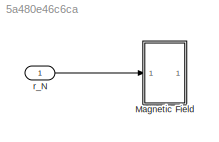
MODEL slx_5a480e46c6ca
KIND model
CONFIG AbsTol = auto
CONFIG EnableMultiTasking = off
CONFIG FixedStep = auto
CONFIG MaxStep = auto
CONFIG MinStep = auto
CONFIG RelTol = 1e-3
CONFIG SampleTimeConstraint = Unconstrained
CONFIG SolverName = VariableStepAuto
CONFIG StartTime = 0.0
CONFIG StopTime = 10.0
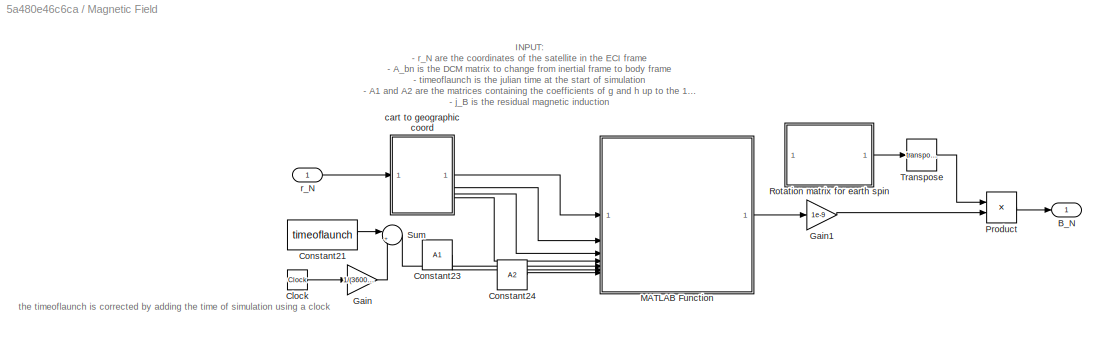
BLOCK [SubSystem] Magnetic Field
BLOCK [Outport] Magnetic Field/B_N
BLOCK [Clock] Magnetic Field/Clock
BLOCK [Constant] Magnetic Field/Constant21
  Value = timeoflaunch
BLOCK [Constant] Magnetic Field/Constant23
  Value = A1
BLOCK [Constant] Magnetic Field/Constant24
  Value = A2
BLOCK [Gain] Magnetic Field/Gain
  Gain = 1/(3600*24)
BLOCK [Gain] Magnetic Field/Gain1
  Gain = 1e-9
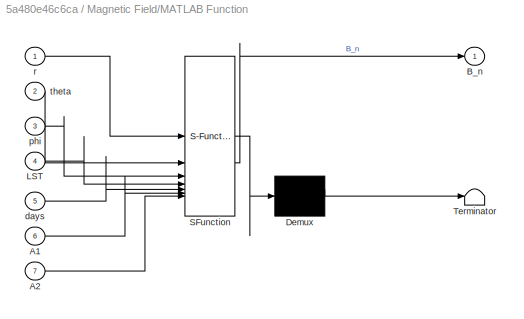
BLOCK [SubSystem] Magnetic Field/MATLAB Function
  ErrorFcn = Stateflow.Translate.translate
  PermitHierarchicalResolution = ExplicitOnly
  SFBlockType = MATLAB Function
  TreatAsAtomicUnit = on
BLOCK [Demux] Magnetic Field/MATLAB Function/ Demux 
  Outputs = 1
BLOCK [S-Function] Magnetic Field/MATLAB Function/ SFunction 
  EnableBusSupport = on
  FunctionName = sf_sfun
  PortCounts = [7 2]
  SFcnIsStateOwnerBlock = off
  SFunctionDeploymentMode = off
  Tag = Stateflow S-Function 1
BLOCK [Terminator] Magnetic Field/MATLAB Function/ Terminator 
BLOCK [Inport] Magnetic Field/MATLAB Function/A1
  Port = 6
BLOCK [Inport] Magnetic Field/MATLAB Function/A2
  Port = 7
BLOCK [Outport] Magnetic Field/MATLAB Function/B_n
BLOCK [Inport] Magnetic Field/MATLAB Function/LST
  Port = 4
BLOCK [Inport] Magnetic Field/MATLAB Function/days
  Port = 5
BLOCK [Inport] Magnetic Field/MATLAB Function/phi
  Port = 3
BLOCK [Inport] Magnetic Field/MATLAB Function/r
BLOCK [Inport] Magnetic Field/MATLAB Function/theta
  Port = 2
BLOCK [Product] Magnetic Field/Product
  Multiplication = Matrix(*)
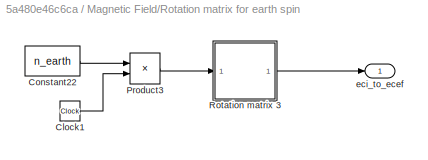
BLOCK [SubSystem] Magnetic Field/Rotation matrix for earth spin
BLOCK [Clock] Magnetic Field/Rotation matrix for earth spin/Clock1
BLOCK [Constant] Magnetic Field/Rotation matrix for earth spin/Constant22
  Value = n_earth
BLOCK [Product] Magnetic Field/Rotation matrix for earth spin/Product3
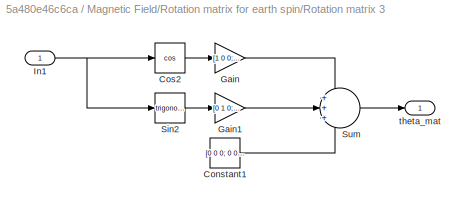
BLOCK [SubSystem] Magnetic Field/Rotation matrix for earth spin/Rotation matrix 3
BLOCK [Constant] Magnetic Field/Rotation matrix for earth spin/Rotation matrix 3/Constant1
  Value = [0 0 0; 0 0 0; 0 0 1]
BLOCK [Trigonometry] Magnetic Field/Rotation matrix for earth spin/Rotation matrix 3/Cos2
  Operator = cos
BLOCK [Gain] Magnetic Field/Rotation matrix for earth spin/Rotation matrix 3/Gain
  Gain = [1 0 0; 0 1 0; 0 0 0]
BLOCK [Gain] Magnetic Field/Rotation matrix for earth spin/Rotation matrix 3/Gain1
  Gain = [0 1 0; -1 0 0; 0 0 0]
BLOCK [Inport] Magnetic Field/Rotation matrix for earth spin/Rotation matrix 3/In1
BLOCK [Trigonometry] Magnetic Field/Rotation matrix for earth spin/Rotation matrix 3/Sin2
BLOCK [Sum] Magnetic Field/Rotation matrix for earth spin/Rotation matrix 3/Sum
  Inputs = +++
BLOCK [Outport] Magnetic Field/Rotation matrix for earth spin/Rotation matrix 3/theta_mat
BLOCK [Outport] Magnetic Field/Rotation matrix for earth spin/eci_to_ecef
BLOCK [Sum] Magnetic Field/Sum
  Inputs = |++
BLOCK [Math] Magnetic Field/Transpose
  Operator = transpose
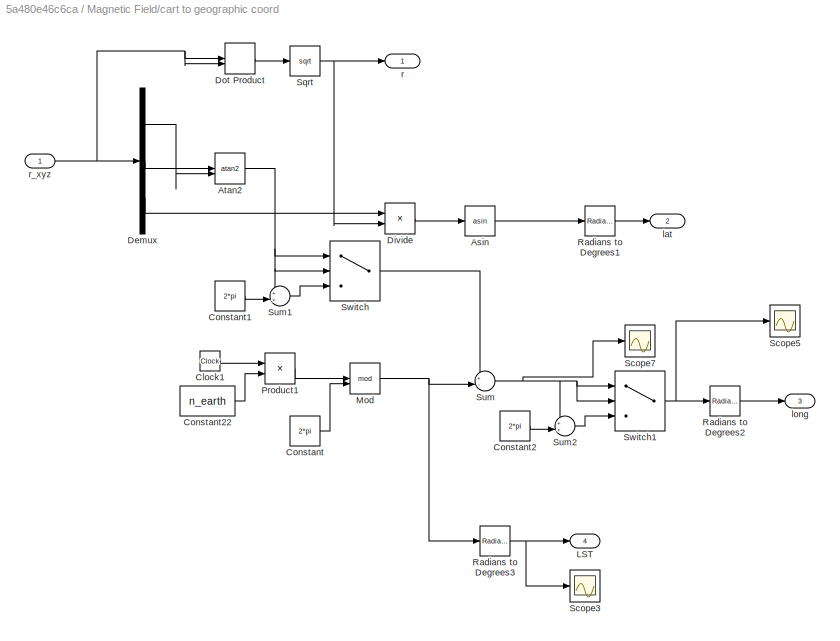
BLOCK [SubSystem] Magnetic Field/cart to geographic coord
BLOCK [Trigonometry] Magnetic Field/cart to geographic coord/Asin
  Operator = asin
BLOCK [Trigonometry] Magnetic Field/cart to geographic coord/Atan2
  Operator = atan2
BLOCK [Clock] Magnetic Field/cart to geographic coord/Clock1
BLOCK [Constant] Magnetic Field/cart to geographic coord/Constant
  Value = 2*pi
BLOCK [Constant] Magnetic Field/cart to geographic coord/Constant1
  Value = 2*pi
BLOCK [Constant] Magnetic Field/cart to geographic coord/Constant2
  Value = 2*pi
BLOCK [Constant] Magnetic Field/cart to geographic coord/Constant22
  Value = n_earth
BLOCK [Demux] Magnetic Field/cart to geographic coord/Demux
  Outputs = 3
BLOCK [Product] Magnetic Field/cart to geographic coord/Divide
  Inputs = */
BLOCK [DotProduct] Magnetic Field/cart to geographic coord/Dot Product
  OutDataTypeStr = Inherit: Inherit via internal rule
BLOCK [Outport] Magnetic Field/cart to geographic coord/LST
  Port = 4
BLOCK [Math] Magnetic Field/cart to geographic coord/Mod
  Operator = mod
BLOCK [Product] Magnetic Field/cart to geographic coord/Product1
BLOCK [Reference] Magnetic Field/cart to geographic coord/Radians to Degrees1  REF=simulink_extras/Transformations/Radians
to Degrees
  SourceBlock = simulink_extras/Transformations/Radians\nto Degrees
  SourceType = RadiansToDegrees
BLOCK [Reference] Magnetic Field/cart to geographic coord/Radians to Degrees2  REF=simulink_extras/Transformations/Radians
to Degrees
  SourceBlock = simulink_extras/Transformations/Radians\nto Degrees
  SourceType = RadiansToDegrees
BLOCK [Reference] Magnetic Field/cart to geographic coord/Radians to Degrees3  REF=simulink_extras/Transformations/Radians
to Degrees
  SourceBlock = simulink_extras/Transformations/Radians\nto Degrees
  SourceType = RadiansToDegrees
BLOCK [Scope] Magnetic Field/cart to geographic coord/Scope3
  Floating = off
  NumInputPorts = 1
  ScopeSpecificationString = Simulink.scopes.TimeScopeBlockCfg('CurrentConfiguration', extmgr.ConfigurationSet(extmgr.Configuration('Core','General UI',true),extmgr.Configuration('Core','Source UI',true),extmgr.Configuration('Sources','WiredSimulink',true,'DataLoggingVariableName','ScopeData8'),extmgr.Configuration('Visuals','Time Domain',true,'SerializedDisplays',{struct('MinYLimReal','-44.99948','MaxYLimReal','683.50866','Y...<+1463ch>
BLOCK [Scope] Magnetic Field/cart to geographic coord/Scope5
  Floating = off
  NumInputPorts = 1
  ScopeSpecificationString = Simulink.scopes.TimeScopeBlockCfg('CurrentConfiguration', extmgr.ConfigurationSet(extmgr.Configuration('Core','General UI',true),extmgr.Configuration('Core','Source UI',true),extmgr.Configuration('Sources','WiredSimulink',true,'DataLoggingVariableName','ScopeData1'),extmgr.Configuration('Visuals','Time Domain',true,'SerializedDisplays',{struct('MinYLimReal','-0.78538','MaxYLimReal','7.06858','YLab...<+1443ch>
BLOCK [Scope] Magnetic Field/cart to geographic coord/Scope7
  Floating = off
  NumInputPorts = 1
  ScopeSpecificationString = Simulink.scopes.TimeScopeBlockCfg('CurrentConfiguration', extmgr.ConfigurationSet(extmgr.Configuration('Core','General UI',true),extmgr.Configuration('Core','Source UI',true),extmgr.Configuration('Sources','WiredSimulink',true,'DataLoggingVariableName','ScopeData3'),extmgr.Configuration('Visuals','Time Domain',true,'SerializedDisplays',{struct('MinYLimReal','-6.19926','MaxYLimReal','6.65496','YLab...<+1462ch>
BLOCK [Sqrt] Magnetic Field/cart to geographic coord/Sqrt
BLOCK [Sum] Magnetic Field/cart to geographic coord/Sum
  Inputs = +-|
BLOCK [Sum] Magnetic Field/cart to geographic coord/Sum1
  Inputs = ++|
BLOCK [Sum] Magnetic Field/cart to geographic coord/Sum2
  Inputs = ++|
BLOCK [Switch] Magnetic Field/cart to geographic coord/Switch
  InputSameDT = off
  SaturateOnIntegerOverflow = off
BLOCK [Switch] Magnetic Field/cart to geographic coord/Switch1
  InputSameDT = off
  SaturateOnIntegerOverflow = off
BLOCK [Outport] Magnetic Field/cart to geographic coord/lat
  Port = 2
BLOCK [Outport] Magnetic Field/cart to geographic coord/long
  Port = 3
BLOCK [Outport] Magnetic Field/cart to geographic coord/r
BLOCK [Inport] Magnetic Field/cart to geographic coord/r_xyz
BLOCK [Inport] Magnetic Field/r_N
BLOCK [Inport] r_N
ANNOTATION Magnetic Field: INPUT: - r_N are the coordinates of the satellite in the ECI frame - A_bn is the DCM matrix to change from inertial frame to body frame - timeoflaunch is the julian time at the start of simulation - A1 and A2 are the matrices containing the coefficients of g and h up to the 13th order - j_B is the residual magnetic induction
ANNOTATION Magnetic Field: the timeoflaunch is corrected by adding the time of simulation using a clock
LINE Magnetic Field/Clock:1 -> Magnetic Field/Gain:1
LINE Magnetic Field/Constant21:1 -> Magnetic Field/Sum:1
LINE Magnetic Field/Constant23:1 -> Magnetic Field/MATLAB Function:6
LINE Magnetic Field/Constant24:1 -> Magnetic Field/MATLAB Function:7
LINE Magnetic Field/Gain1:1 -> Magnetic Field/Product:2
LINE Magnetic Field/Gain:1 -> Magnetic Field/Sum:2
LINE Magnetic Field/MATLAB Function:1 -> Magnetic Field/Gain1:1
LINE Magnetic Field/Product:1 -> Magnetic Field/B_N:1
LINE Magnetic Field/Rotation matrix for earth spin/Clock1:1 -> Magnetic Field/Rotation matrix for earth spin/Product3:2
LINE Magnetic Field/Rotation matrix for earth spin/Constant22:1 -> Magnetic Field/Rotation matrix for earth spin/Product3:1
LINE Magnetic Field/Rotation matrix for earth spin/Product3:1 -> Magnetic Field/Rotation matrix for earth spin/Rotation matrix 3:1
LINE Magnetic Field/Rotation matrix for earth spin/Rotation matrix 3/Constant1:1 -> Magnetic Field/Rotation matrix for earth spin/Rotation matrix 3/Sum:3
LINE Magnetic Field/Rotation matrix for earth spin/Rotation matrix 3/Cos2:1 -> Magnetic Field/Rotation matrix for earth spin/Rotation matrix 3/Gain:1
LINE Magnetic Field/Rotation matrix for earth spin/Rotation matrix 3/Gain1:1 -> Magnetic Field/Rotation matrix for earth spin/Rotation matrix 3/Sum:2
LINE Magnetic Field/Rotation matrix for earth spin/Rotation matrix 3/Gain:1 -> Magnetic Field/Rotation matrix for earth spin/Rotation matrix 3/Sum:1
NET Magnetic Field/Rotation matrix for earth spin/Rotation matrix 3/In1:1 -> Magnetic Field/Rotation matrix for earth spin/Rotation matrix 3/Cos2:1, Magnetic Field/Rotation matrix for earth spin/Rotation matrix 3/Sin2:1
LINE Magnetic Field/Rotation matrix for earth spin/Rotation matrix 3/Sin2:1 -> Magnetic Field/Rotation matrix for earth spin/Rotation matrix 3/Gain1:1
LINE Magnetic Field/Rotation matrix for earth spin/Rotation matrix 3/Sum:1 -> Magnetic Field/Rotation matrix for earth spin/Rotation matrix 3/theta_mat:1
LINE Magnetic Field/Rotation matrix for earth spin/Rotation matrix 3:1 -> Magnetic Field/Rotation matrix for earth spin/eci_to_ecef:1
LINE Magnetic Field/Rotation matrix for earth spin:1 -> Magnetic Field/Transpose:1
LINE Magnetic Field/Sum:1 -> Magnetic Field/MATLAB Function:5
LINE Magnetic Field/Transpose:1 -> Magnetic Field/Product:1
LINE Magnetic Field/cart to geographic coord/Asin:1 -> Magnetic Field/cart to geographic coord/Radians to Degrees1:1
NET Magnetic Field/cart to geographic coord/Atan2:1 -> Magnetic Field/cart to geographic coord/Sum1:1, Magnetic Field/cart to geographic coord/Switch:1, Magnetic Field/cart to geographic coord/Switch:2
LINE Magnetic Field/cart to geographic coord/Clock1:1 -> Magnetic Field/cart to geographic coord/Product1:1
LINE Magnetic Field/cart to geographic coord/Constant1:1 -> Magnetic Field/cart to geographic coord/Sum1:2
LINE Magnetic Field/cart to geographic coord/Constant22:1 -> Magnetic Field/cart to geographic coord/Product1:2
LINE Magnetic Field/cart to geographic coord/Constant2:1 -> Magnetic Field/cart to geographic coord/Sum2:2
LINE Magnetic Field/cart to geographic coord/Constant:1 -> Magnetic Field/cart to geographic coord/Mod:2
LINE Magnetic Field/cart to geographic coord/Demux:1 -> Magnetic Field/cart to geographic coord/Atan2:2
LINE Magnetic Field/cart to geographic coord/Demux:2 -> Magnetic Field/cart to geographic coord/Atan2:1
LINE Magnetic Field/cart to geographic coord/Demux:3 -> Magnetic Field/cart to geographic coord/Divide:1
LINE Magnetic Field/cart to geographic coord/Divide:1 -> Magnetic Field/cart to geographic coord/Asin:1
LINE Magnetic Field/cart to geographic coord/Dot Product:1 -> Magnetic Field/cart to geographic coord/Sqrt:1
NET Magnetic Field/cart to geographic coord/Mod:1 -> Magnetic Field/cart to geographic coord/Radians to Degrees3:1, Magnetic Field/cart to geographic coord/Sum:2
LINE Magnetic Field/cart to geographic coord/Product1:1 -> Magnetic Field/cart to geographic coord/Mod:1
LINE Magnetic Field/cart to geographic coord/Radians to Degrees1:1 -> Magnetic Field/cart to geographic coord/lat:1
LINE Magnetic Field/cart to geographic coord/Radians to Degrees2:1 -> Magnetic Field/cart to geographic coord/long:1
NET Magnetic Field/cart to geographic coord/Radians to Degrees3:1 -> Magnetic Field/cart to geographic coord/LST:1, Magnetic Field/cart to geographic coord/Scope3:1
NET Magnetic Field/cart to geographic coord/Sqrt:1 -> Magnetic Field/cart to geographic coord/Divide:2, Magnetic Field/cart to geographic coord/r:1
LINE Magnetic Field/cart to geographic coord/Sum1:1 -> Magnetic Field/cart to geographic coord/Switch:3
LINE Magnetic Field/cart to geographic coord/Sum2:1 -> Magnetic Field/cart to geographic coord/Switch1:3
NET Magnetic Field/cart to geographic coord/Sum:1 -> Magnetic Field/cart to geographic coord/Scope7:1, Magnetic Field/cart to geographic coord/Sum2:1, Magnetic Field/cart to geographic coord/Switch1:1, Magnetic Field/cart to geographic coord/Switch1:2
NET Magnetic Field/cart to geographic coord/Switch1:1 -> Magnetic Field/cart to geographic coord/Radians to Degrees2:1, Magnetic Field/cart to geographic coord/Scope5:1
LINE Magnetic Field/cart to geographic coord/Switch:1 -> Magnetic Field/cart to geographic coord/Sum:1
NET Magnetic Field/cart to geographic coord/r_xyz:1 -> Magnetic Field/cart to geographic coord/Demux:1, Magnetic Field/cart to geographic coord/Dot Product:1, Magnetic Field/cart to geographic coord/Dot Product:2
LINE Magnetic Field/cart to geographic coord:1 -> Magnetic Field/MATLAB Function:1
LINE Magnetic Field/cart to geographic coord:2 -> Magnetic Field/MATLAB Function:2
LINE Magnetic Field/cart to geographic coord:3 -> Magnetic Field/MATLAB Function:3
LINE Magnetic Field/cart to geographic coord:4 -> Magnetic Field/MATLAB Function:4
LINE Magnetic Field/r_N:1 -> Magnetic Field/cart to geographic coord:1
LINE r_N:1 -> Magnetic Field:1
note: NET lines group one-source signal fan-out (src -> all destinations, sorted); 1:1 wires keep LINE
CHART Magnetic Field/MATLAB Function states=1 transitions=1
  STATE_LABEL 'eML_blk_kernel()'
  STATE_LABEL 'SCRIPT:\nfunction B_n = magnetic_field_model(r, theta, phi, LST, days, A1, A2)\n%   mjd2000[1]  Date in MJD 2000. MJD2000 is defined as the number of days\n%               since 01-01-2000, 12:00 noon.\n\n% Inputs\n% r         Geocentric radius\n% theta     Latitude measured in degrees positive from equator  \n% phi       Longitude measured in degrees positive east from Greenwich\n% days      Decimal days ...<+793ch>'
CHART  states=0 transitions=0
